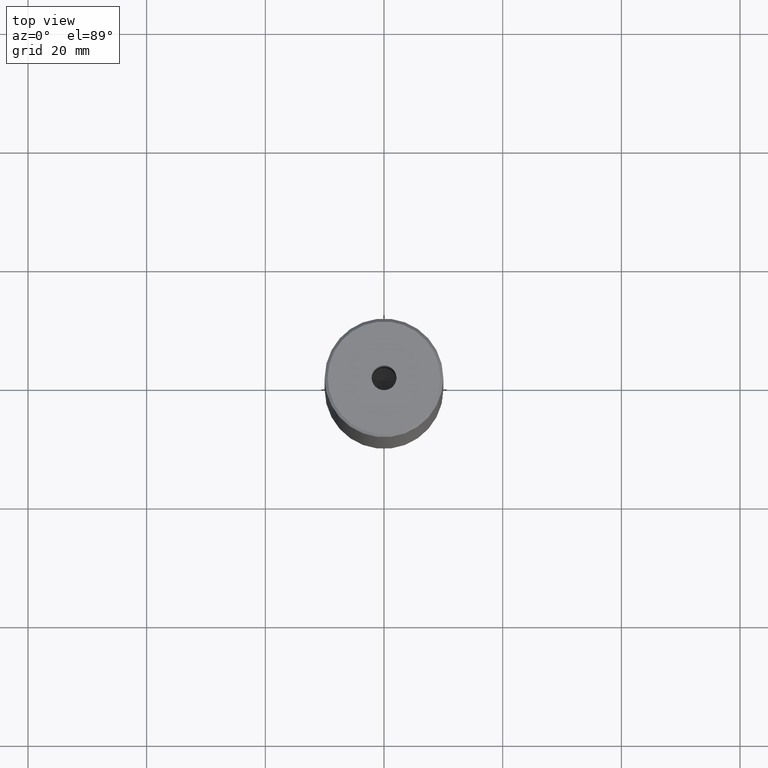
[diagram: clean part render]
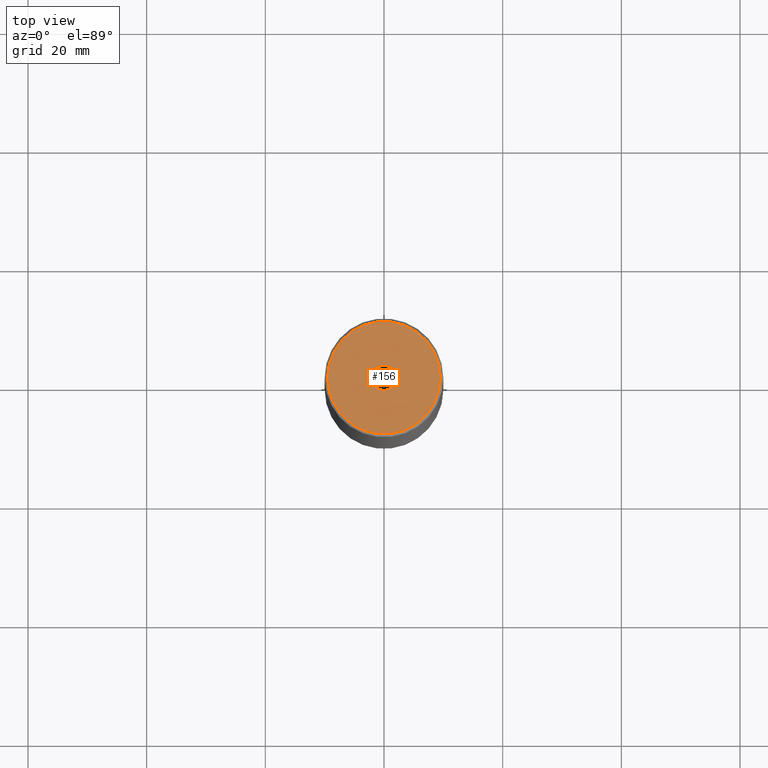
[diagram: same view with one face highlighted and labeled with its STEP entity id]
A machine part, top view. The second image highlights one B-rep face of the part: STEP entity #156.
In plain terms, the highlighted planar face has unit normal (0, -0, 1).
Its self-contained STEP definition (entity closure, byte-faithful):
#15 = CARTESIAN_POINT ( 'NONE',  ( -2.099999999999998757, 2.571758278209440478E-16, -1.990051048614449116E-16 ) ) ;
#90 = DIRECTION ( 'NONE',  ( 1.000000000000000000, 0.000000000000000000, 0.000000000000000000 ) ) ;
#111 = CARTESIAN_POINT ( 'NONE',  ( 2.099999999999998757, 0.000000000000000000, -1.990051048614449116E-16 ) ) ;
#125 = VERTEX_POINT ( 'NONE', #111 ) ;
#129 = EDGE_CURVE ( 'NONE', #191, #125, #173, .T. ) ;
#132 = VERTEX_POINT ( 'NONE', #567 ) ;
#133 = PLANE ( 'NONE',  #303 ) ;
#156 = ADVANCED_FACE ( 'NONE', ( #168, #176 ), #133, .T. ) ;
#164 = AXIS2_PLACEMENT_3D ( 'NONE', #475, #276, #453 ) ;
#168 = FACE_BOUND ( 'NONE', #436, .T. ) ;
#171 = ORIENTED_EDGE ( 'NONE', *, *, #374, .F. ) ;
#173 = CIRCLE ( 'NONE', #549, 2.099999999999998757 ) ;
#176 = FACE_OUTER_BOUND ( 'NONE', #360, .T. ) ;
#191 = VERTEX_POINT ( 'NONE', #15 ) ;
#193 = CIRCLE ( 'NONE', #563, 9.499999999999980460 ) ;
#215 = CARTESIAN_POINT ( 'NONE',  ( 0.000000000000000000, 0.000000000000000000, -1.990051048614449116E-16 ) ) ;
#233 = ORIENTED_EDGE ( 'NONE', *, *, #251, .T. ) ;
#241 = EDGE_CURVE ( 'NONE', #479, #132, #193, .T. ) ;
#251 = EDGE_CURVE ( 'NONE', #132, #479, #502, .T. ) ;
#260 = CARTESIAN_POINT ( 'NONE',  ( 0.000000000000000000, 0.000000000000000000, 0.000000000000000000 ) ) ;
#276 = DIRECTION ( 'NONE',  ( -0.000000000000000000, -0.000000000000000000, 1.000000000000000000 ) ) ;
#284 = DIRECTION ( 'NONE',  ( -0.000000000000000000, -0.000000000000000000, 1.000000000000000000 ) ) ;
#287 = CIRCLE ( 'NONE', #357, 2.099999999999998757 ) ;
#297 = DIRECTION ( 'NONE',  ( 1.000000000000000000, 0.000000000000000000, 0.000000000000000000 ) ) ;
#300 = DIRECTION ( 'NONE',  ( -0.000000000000000000, -0.000000000000000000, 1.000000000000000000 ) ) ;
#303 = AXIS2_PLACEMENT_3D ( 'NONE', #534, #376, #297 ) ;
#309 = DIRECTION ( 'NONE',  ( 1.000000000000000000, 0.000000000000000000, 0.000000000000000000 ) ) ;
#357 = AXIS2_PLACEMENT_3D ( 'NONE', #501, #284, #90 ) ;
#360 = EDGE_LOOP ( 'NONE', ( #233, #481 ) ) ;
#363 = DIRECTION ( 'NONE',  ( 1.000000000000000000, 0.000000000000000000, 0.000000000000000000 ) ) ;
#374 = EDGE_CURVE ( 'NONE', #125, #191, #287, .T. ) ;
#376 = DIRECTION ( 'NONE',  ( 0.000000000000000000, -0.000000000000000000, 1.000000000000000000 ) ) ;
#418 = CARTESIAN_POINT ( 'NONE',  ( 9.499999999999980460, 1.194030629168668286E-15, 0.000000000000000000 ) ) ;
#436 = EDGE_LOOP ( 'NONE', ( #171, #525 ) ) ;
#445 = DIRECTION ( 'NONE',  ( -0.000000000000000000, -0.000000000000000000, 1.000000000000000000 ) ) ;
#453 = DIRECTION ( 'NONE',  ( 1.000000000000000000, 0.000000000000000000, 0.000000000000000000 ) ) ;
#475 = CARTESIAN_POINT ( 'NONE',  ( 0.000000000000000000, 0.000000000000000000, 0.000000000000000000 ) ) ;
#479 = VERTEX_POINT ( 'NONE', #418 ) ;
#481 = ORIENTED_EDGE ( 'NONE', *, *, #241, .T. ) ;
#501 = CARTESIAN_POINT ( 'NONE',  ( 0.000000000000000000, 0.000000000000000000, -1.990051048614449116E-16 ) ) ;
#502 = CIRCLE ( 'NONE', #164, 9.499999999999980460 ) ;
#525 = ORIENTED_EDGE ( 'NONE', *, *, #129, .F. ) ;
#534 = CARTESIAN_POINT ( 'NONE',  ( 0.000000000000000000, 0.000000000000000000, 0.000000000000000000 ) ) ;
#549 = AXIS2_PLACEMENT_3D ( 'NONE', #215, #445, #309 ) ;
#563 = AXIS2_PLACEMENT_3D ( 'NONE', #260, #300, #363 ) ;
#567 = CARTESIAN_POINT ( 'NONE',  ( -9.499999999999980460, 0.000000000000000000, 0.000000000000000000 ) ) ;